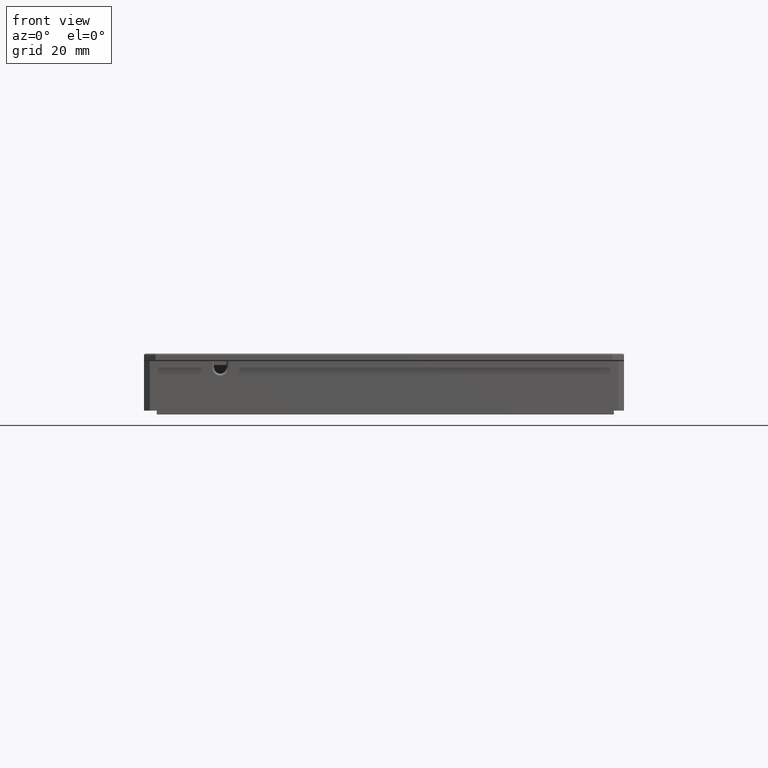
[diagram: clean part render]
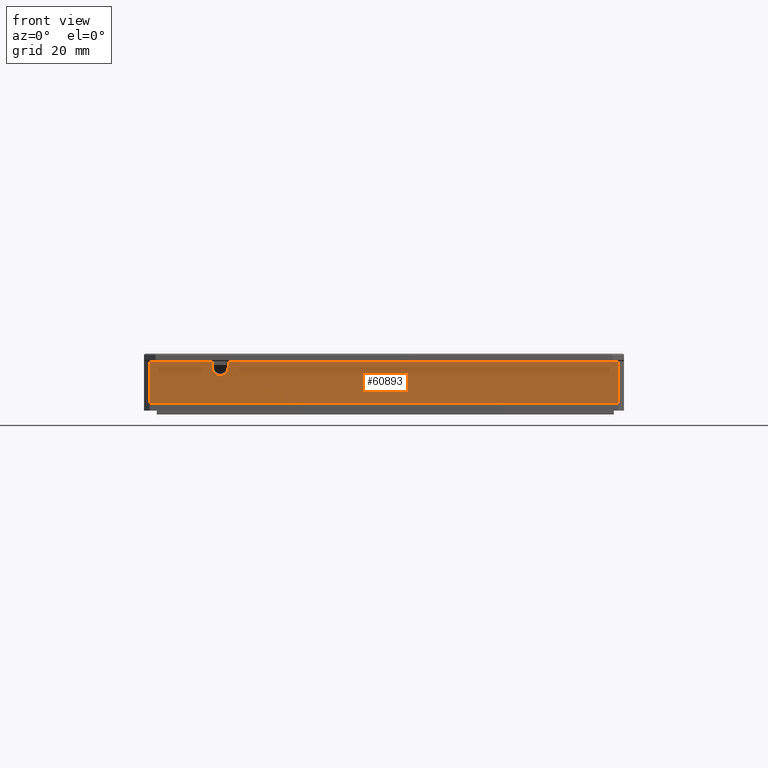
[diagram: same view with one face highlighted and labeled with its STEP entity id]
A machine part, front view. The second image highlights one B-rep face of the part: STEP entity #60893.
In plain terms, the highlighted planar face has unit normal (0, 1, 0).
Its self-contained STEP definition (entity closure, byte-faithful):
#1433 = DIRECTION ( 'NONE',  ( -0.0000000000000000000, 0.0000000000000000000, -1.000000000000000000 ) ) ;
#1674 = VECTOR ( 'NONE', #50848, 1000.000000000000000 ) ;
#2033 = ORIENTED_EDGE ( 'NONE', *, *, #31201, .F. ) ;
#2307 = CARTESIAN_POINT ( 'NONE',  ( -63.35509736540663500, -51.11034746086289000, 10.99999999998362900 ) ) ;
#3170 = ORIENTED_EDGE ( 'NONE', *, *, #49281, .F. ) ;
#4101 = ORIENTED_EDGE ( 'NONE', *, *, #6845, .F. ) ;
#6366 = LINE ( 'NONE', #34758, #69214 ) ;
#6401 = EDGE_CURVE ( 'NONE', #49305, #7042, #45858, .T. ) ;
#6592 = AXIS2_PLACEMENT_3D ( 'NONE', #90381, #55191, #82959 ) ;
#6757 = AXIS2_PLACEMENT_3D ( 'NONE', #67639, #17770, #53790 ) ;
#6845 = EDGE_CURVE ( 'NONE', #25037, #29129, #85362, .T. ) ;
#7042 = VERTEX_POINT ( 'NONE', #73201 ) ;
#7382 = VECTOR ( 'NONE', #10570, 1000.000000000000000 ) ;
#9863 = CARTESIAN_POINT ( 'NONE',  ( -61.85509736540665000, -51.11034746086289000, 10.99999999998362900 ) ) ;
#10570 = DIRECTION ( 'NONE',  ( 1.000000000000000000, 0.0000000000000000000, -0.0000000000000000000 ) ) ;
#10887 = VECTOR ( 'NONE', #1433, 1000.000000000000000 ) ;
#11911 = EDGE_CURVE ( 'NONE', #63655, #17107, #28784, .T. ) ;
#15304 = LINE ( 'NONE', #44306, #10887 ) ;
#16457 = CARTESIAN_POINT ( 'NONE',  ( -45.45509736540660100, -51.11034746086289000, 10.99999999998363100 ) ) ;
#16926 = ORIENTED_EDGE ( 'NONE', *, *, #11911, .F. ) ;
#17107 = VERTEX_POINT ( 'NONE', #16457 ) ;
#17770 = DIRECTION ( 'NONE',  ( 0.0000000000000000000, 1.000000000000000000, 0.0000000000000000000 ) ) ;
#20836 = CARTESIAN_POINT ( 'NONE',  ( -43.35509736540662800, -51.11034746086289000, 9.299999999983628000 ) ) ;
#21057 = EDGE_CURVE ( 'NONE', #29129, #49305, #31641, .T. ) ;
#23438 = ORIENTED_EDGE ( 'NONE', *, *, #52526, .F. ) ;
#24098 = FACE_OUTER_BOUND ( 'NONE', #89122, .T. ) ;
#24100 = ORIENTED_EDGE ( 'NONE', *, *, #6401, .F. ) ;
#24880 = CARTESIAN_POINT ( 'NONE',  ( 61.14490263459336500, -51.11034746086289700, 10.99999999998362900 ) ) ;
#25037 = VERTEX_POINT ( 'NONE', #29045 ) ;
#28537 = DIRECTION ( 'NONE',  ( -0.0000000000000000000, 0.0000000000000000000, -1.000000000000000000 ) ) ;
#28784 = LINE ( 'NONE', #48768, #47566 ) ;
#29045 = CARTESIAN_POINT ( 'NONE',  ( -41.25509736538667500, -51.11034746089131200, 9.299999999983628000 ) ) ;
#29129 = VERTEX_POINT ( 'NONE', #81551 ) ;
#29952 = CIRCLE ( 'NONE', #72455, 2.099999999988357800 ) ;
#31201 = EDGE_CURVE ( 'NONE', #74823, #51808, #75824, .T. ) ;
#31641 = LINE ( 'NONE', #2307, #7382 ) ;
#33453 = CARTESIAN_POINT ( 'NONE',  ( -61.85509736540665000, -51.11034746086289000, -1.637123596409662000E-011 ) ) ;
#34224 = VECTOR ( 'NONE', #72083, 1000.000000000000000 ) ;
#34758 = CARTESIAN_POINT ( 'NONE',  ( -61.85509736540666400, -51.11034746086289000, 10.99999999998362900 ) ) ;
#35294 = EDGE_CURVE ( 'NONE', #7042, #68529, #41898, .T. ) ;
#38612 = ORIENTED_EDGE ( 'NONE', *, *, #21057, .F. ) ;
#41443 = ORIENTED_EDGE ( 'NONE', *, *, #35294, .F. ) ;
#41898 = LINE ( 'NONE', #79227, #34224 ) ;
#44306 = CARTESIAN_POINT ( 'NONE',  ( -45.45509736540660100, -51.11034746086289000, 10.99999999998362900 ) ) ;
#45858 = LINE ( 'NONE', #79534, #1674 ) ;
#46104 = PLANE ( 'NONE',  #6757 ) ;
#47371 = ORIENTED_EDGE ( 'NONE', *, *, #57863, .T. ) ;
#47566 = VECTOR ( 'NONE', #61997, 1000.000000000000000 ) ;
#48768 = CARTESIAN_POINT ( 'NONE',  ( -63.35509736540663500, -51.11034746086289000, 10.99999999998362900 ) ) ;
#49014 = VECTOR ( 'NONE', #78495, 1000.000000000000000 ) ;
#49281 = EDGE_CURVE ( 'NONE', #17107, #74823, #15304, .T. ) ;
#49305 = VERTEX_POINT ( 'NONE', #24880 ) ;
#50848 = DIRECTION ( 'NONE',  ( -0.0000000000000000000, 0.0000000000000000000, -1.000000000000000000 ) ) ;
#51808 = VERTEX_POINT ( 'NONE', #52134 ) ;
#52134 = CARTESIAN_POINT ( 'NONE',  ( -43.35509736540662800, -51.11034746086289000, 7.199999999995270600 ) ) ;
#52526 = EDGE_CURVE ( 'NONE', #51808, #25037, #29952, .T. ) ;
#53790 = DIRECTION ( 'NONE',  ( 0.0000000000000000000, -0.0000000000000000000, 1.000000000000000000 ) ) ;
#55191 = DIRECTION ( 'NONE',  ( 0.0000000000000000000, -1.000000000000000000, 0.0000000000000000000 ) ) ;
#56543 = DIRECTION ( 'NONE',  ( 0.0000000000000000000, 0.0000000000000000000, -1.000000000000000000 ) ) ;
#57863 = EDGE_CURVE ( 'NONE', #63655, #68529, #6366, .T. ) ;
#60893 = ADVANCED_FACE ( 'NONE', ( #24098 ), #46104, .F. ) ;
#61997 = DIRECTION ( 'NONE',  ( 1.000000000000000000, 0.0000000000000000000, -0.0000000000000000000 ) ) ;
#63655 = VERTEX_POINT ( 'NONE', #9863 ) ;
#67639 = CARTESIAN_POINT ( 'NONE',  ( -63.35509736540663500, -51.11034746086289000, 10.99999999998362900 ) ) ;
#68529 = VERTEX_POINT ( 'NONE', #33453 ) ;
#69214 = VECTOR ( 'NONE', #28537, 1000.000000000000000 ) ;
#70148 = DIRECTION ( 'NONE',  ( 0.0000000000000000000, -1.000000000000000000, 0.0000000000000000000 ) ) ;
#72083 = DIRECTION ( 'NONE',  ( -1.000000000000000000, 0.0000000000000000000, -0.0000000000000000000 ) ) ;
#72455 = AXIS2_PLACEMENT_3D ( 'NONE', #20836, #70148, #56543 ) ;
#73201 = CARTESIAN_POINT ( 'NONE',  ( 61.14490263459337900, -51.11034746086289000, -1.637318752800709400E-011 ) ) ;
#74237 = CARTESIAN_POINT ( 'NONE',  ( -45.45509736542726400, -51.11034746086289000, 9.299999999983628000 ) ) ;
#74823 = VERTEX_POINT ( 'NONE', #74237 ) ;
#75824 = CIRCLE ( 'NONE', #6592, 2.099999999988357800 ) ;
#78495 = DIRECTION ( 'NONE',  ( 0.0000000000000000000, -0.0000000000000000000, 1.000000000000000000 ) ) ;
#79118 = CARTESIAN_POINT ( 'NONE',  ( -41.25509736540666900, -51.11034746086289000, 10.99999999998362900 ) ) ;
#79227 = CARTESIAN_POINT ( 'NONE',  ( -63.35509736540663500, -51.11034746086289000, -1.637058544279312900E-011 ) ) ;
#79534 = CARTESIAN_POINT ( 'NONE',  ( 61.14490263459335000, -51.11034746086289000, 10.99999999998362900 ) ) ;
#81551 = CARTESIAN_POINT ( 'NONE',  ( -41.25509736540666900, -51.11034746086289000, 10.99999999998363100 ) ) ;
#82959 = DIRECTION ( 'NONE',  ( 0.0000000000000000000, 0.0000000000000000000, -1.000000000000000000 ) ) ;
#85362 = LINE ( 'NONE', #79118, #49014 ) ;
#89122 = EDGE_LOOP ( 'NONE', ( #2033, #3170, #16926, #47371, #41443, #24100, #38612, #4101, #23438 ) ) ;
#90381 = CARTESIAN_POINT ( 'NONE',  ( -43.35509736540662800, -51.11034746086289000, 9.299999999983628000 ) ) ;